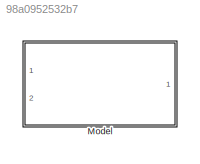
MODEL slx_98a0952532b7
KIND model
CONFIG AbsTol = auto
CONFIG EnableMultiTasking = off
CONFIG FixedStep = auto
CONFIG MaxStep = auto
CONFIG MinStep = auto
CONFIG RelTol = 1e-3
CONFIG SampleTimeConstraint = Unconstrained
CONFIG SolverName = ode23tb
CONFIG StartTime = 0.0
CONFIG StopTime = 10.0
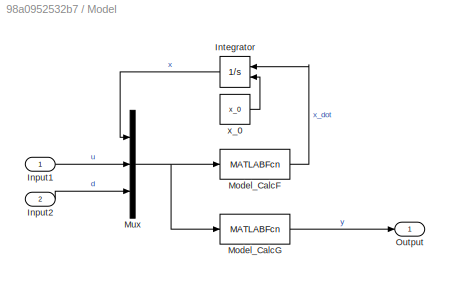
BLOCK [SubSystem] Model
  Ports = [2, 1]
  RequestExecContextInheritance = off
BLOCK [Inport] Model/Input1
  IconDisplay = Port number and signal name
  VarSizeSig = No
BLOCK [Inport] Model/Input2
  IconDisplay = Port number and signal name
  Port = 2
  VarSizeSig = No
BLOCK [Integrator] Model/Integrator
  InitialConditionSource = external
  NameLocation = top
  Ports = [2, 1]
BLOCK [MATLABFcn] Model/Model_CalcF
  Ports = [1, 1]
BLOCK [MATLABFcn] Model/Model_CalcG
  Ports = [1, 1]
BLOCK [Mux] Model/Mux
  DisplayOption = bar
  Inputs = 3
  Ports = [3, 1]
BLOCK [Outport] Model/Output
  IconDisplay = Port number and signal name
BLOCK [Constant] Model/x_0
  Value = x_0
  VectorParams1D = off
LINE Model/Input1:1 -> Model/Mux:2
LINE Model/Input2:1 -> Model/Mux:3
LINE Model/Integrator:1 -> Model/Mux:1
LINE Model/Model_CalcF:1 -> Model/Integrator:1
LINE Model/Model_CalcG:1 -> Model/Output:1
NET Model/Mux:1 -> Model/Model_CalcF:1, Model/Model_CalcG:1
LINE Model/x_0:1 -> Model/Integrator:2
note: NET lines group one-source signal fan-out (src -> all destinations, sorted); 1:1 wires keep LINE
